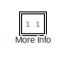
[diagram: root canvas - part 1/2, top right region]
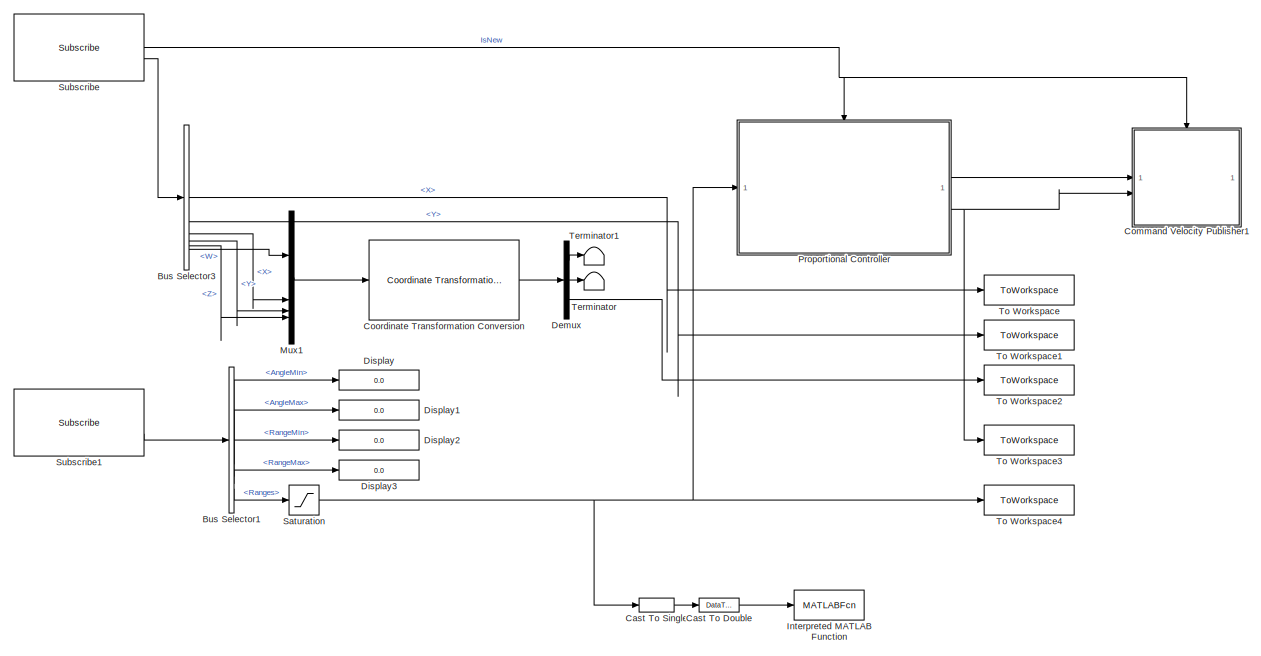
[diagram: root canvas - part 2/2, most of the canvas]
MODEL slx_bec682f37123
KIND model
CONFIG AbsTol = auto
CONFIG EnableMultiTasking = off
CONFIG FixedStep = 0.1
CONFIG MaxStep = auto
CONFIG MinStep = auto
CONFIG RelTol = 1e-3
CONFIG SampleTimeConstraint = Unconstrained
CONFIG SolverName = FixedStepAuto
CONFIG StartTime = 0.0
CONFIG StopTime = inf
WORKSPACE source: mxarray member
WORKSPACE SL_ROS_VariableLengthArrays_MaxSizes: object (value not decoded)
BLOCK [BusSelector] Bus Selector1
  OutputSignals = AngleMin,AngleMax,RangeMin,RangeMax,Ranges
BLOCK [BusSelector] Bus Selector3
  OutputSignals = Pose.Pose.Position.X,Pose.Pose.Position.Y,Pose.Pose.Orientation.X,Pose.Pose.Orientation.Y,Pose.Pose.Orientation.Z,Pose.Pose.Orientation.W
BLOCK [DataTypeConversion] Cast To Double
  Commented = on
  OutDataTypeStr = double
  RndMeth = Floor
  SaturateOnIntegerOverflow = off
BLOCK [DataTypeConversion] Cast To Single
  Commented = on
  OutDataTypeStr = single
  RndMeth = Floor
  SaturateOnIntegerOverflow = off
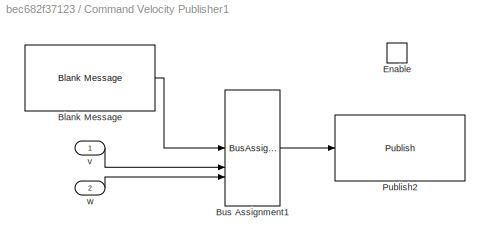
BLOCK [SubSystem] Command Velocity Publisher1
BLOCK [Reference] Command Velocity Publisher1/Blank Message  REF=robotlib/Blank Message
  SourceBlock = robotlib/Blank Message
  SourceType = ROS Blank Message
BLOCK [BusAssignment] Command Velocity Publisher1/Bus Assignment1
  AssignedSignals = Linear.X,Angular.Z
  DialogController = Simulink.DDGSource_BusAssignment
BLOCK [EnablePort] Command Velocity Publisher1/Enable
BLOCK [Reference] Command Velocity Publisher1/Publish2  REF=robotlib/Publish
  AttributesFormatString = %<messageType>
  SourceBlock = robotlib/Publish
  SourceType = ROS Publish
BLOCK [Inport] Command Velocity Publisher1/v
BLOCK [Inport] Command Velocity Publisher1/w
  Port = 2
BLOCK [Reference] Coordinate Transformation Conversion  REF=robotcorelib/Coordinate Transformation Conversion
  LibrarySourceBlock = roslib/Utilities/Coordinate Transformation Conversion
  SourceBlock = robotcorelib/Coordinate Transformation Conversion
  SourceType = robotics.slcore.internal.block.CoordinateTransformationConversion
BLOCK [Demux] Demux
  Outputs = 3
BLOCK [Display] Display
  Decimation = 1
BLOCK [Display] Display1
  Decimation = 1
BLOCK [Display] Display2
  Decimation = 1
BLOCK [Display] Display3
  Decimation = 1
BLOCK [MATLABFcn] Interpreted MATLAB Function
  Commented = on
  MATLABFcn = plot_lidar(u(1:end))
BLOCK [SubSystem] More Info
  OpenFcn = showdemo(bdroot(gcb))
BLOCK [Mux] Mux1
  DisplayOption = bar
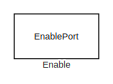
[diagram: Proportional Controller - part 1/2, top left region]
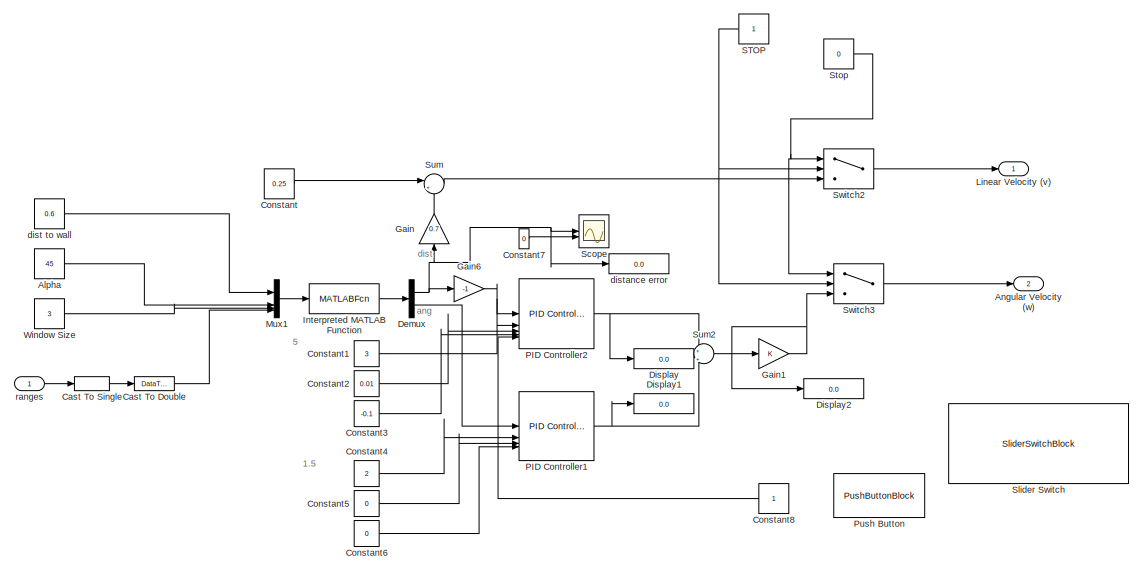
[diagram: Proportional Controller - part 2/2, middle right region]
BLOCK [SubSystem] Proportional Controller
BLOCK [Constant] Proportional Controller/Alpha
  Value = 45
BLOCK [Outport] Proportional Controller/Angular Velocity (w)
  Port = 2
  VectorParamsAs1DForOutWhenUnconnected = off
BLOCK [DataTypeConversion] Proportional Controller/Cast To Double
  OutDataTypeStr = double
  RndMeth = Floor
  SaturateOnIntegerOverflow = off
BLOCK [DataTypeConversion] Proportional Controller/Cast To Single
  OutDataTypeStr = single
  RndMeth = Floor
  SaturateOnIntegerOverflow = off
BLOCK [Constant] Proportional Controller/Constant
  Value = 0.25
BLOCK [Constant] Proportional Controller/Constant1
  Value = 3
BLOCK [Constant] Proportional Controller/Constant2
  Value = 0.01
BLOCK [Constant] Proportional Controller/Constant3
  Value = -0.1
BLOCK [Constant] Proportional Controller/Constant4
  Value = 2
BLOCK [Constant] Proportional Controller/Constant5
  Value = 0
BLOCK [Constant] Proportional Controller/Constant6
  Value = 0
BLOCK [Constant] Proportional Controller/Constant7
  Value = 0
BLOCK [Constant] Proportional Controller/Constant8
  NameLocation = top
BLOCK [Demux] Proportional Controller/Demux
  Outputs = 2
BLOCK [Display] Proportional Controller/Display
  Decimation = 1
BLOCK [Display] Proportional Controller/Display1
  Decimation = 1
BLOCK [Display] Proportional Controller/Display2
  Decimation = 1
BLOCK [EnablePort] Proportional Controller/Enable
BLOCK [Gain] Proportional Controller/Gain
  Gain = 0.7
  NameLocation = right
BLOCK [Gain] Proportional Controller/Gain1
BLOCK [Gain] Proportional Controller/Gain6
  Gain = -1
BLOCK [MATLABFcn] Proportional Controller/Interpreted MATLAB Function
  MATLABFcn = wall_controller_error(u(1), u(2), u(3), u(4:end))
  OutputDimensions = 2
BLOCK [Outport] Proportional Controller/Linear Velocity (v)
  VectorParamsAs1DForOutWhenUnconnected = off
BLOCK [Mux] Proportional Controller/Mux1
  DisplayOption = bar
BLOCK [Reference] Proportional Controller/PID Controller1  REF=slpidlib/PID Controller
  SourceBlock = slpidlib/PID Controller
  SourceType = PID 1dof
BLOCK [Reference] Proportional Controller/PID Controller2  REF=slpidlib/PID Controller
  SourceBlock = slpidlib/PID Controller
  SourceType = PID 1dof
BLOCK [PushButtonBlock] Proportional Controller/Push Button
  OffValue = 1.000000
BLOCK [Constant] Proportional Controller/STOP 
  NameLocation = top
BLOCK [Scope] Proportional Controller/Scope
  Floating = off
  NumInputPorts = 2
  ScopeSpecificationString = Simulink.scopes.TimeScopeBlockCfg('CurrentConfiguration', extmgr.ConfigurationSet(extmgr.Configuration('Core','General UI',true),extmgr.Configuration('Core','Source UI',true),extmgr.Configuration('Sources','WiredSimulink',true),extmgr.Configuration('Visuals','Time Domain',true,'SerializedDisplays',{struct('MinYLimReal','-0.28588','MaxYLimReal','0.05288','YLabelReal','','MinYLimMag','0.00000','MaxY...<+1803ch>
BLOCK [SliderSwitchBlock] Proportional Controller/Slider Switch
BLOCK [Constant] Proportional Controller/Stop
  Value = 0
BLOCK [Sum] Proportional Controller/Sum
  Inputs = |++
BLOCK [Sum] Proportional Controller/Sum2
  Inputs = +|+
BLOCK [Switch] Proportional Controller/Switch2
  Criteria = u2 ~= 0
  InputSameDT = off
  SaturateOnIntegerOverflow = off
BLOCK [Switch] Proportional Controller/Switch3
  Criteria = u2 ~= 0
  InputSameDT = off
  SaturateOnIntegerOverflow = off
BLOCK [Constant] Proportional Controller/Window Size
  Value = 3
BLOCK [Constant] Proportional Controller/dist to wall
  Value = 0.6
BLOCK [Display] Proportional Controller/distance error
  Decimation = 1
BLOCK [Inport] Proportional Controller/ranges
BLOCK [Saturate] Saturation
  LinearizeAsGain = off
  LowerLimit = 0.12
  UpperLimit = 3.5
BLOCK [Reference] Subscribe  REF=robotlib/Subscribe
  SourceBlock = robotlib/Subscribe
  SourceType = ROS Subscribe
BLOCK [Reference] Subscribe1  REF=robotlib/Subscribe
  SourceBlock = robotlib/Subscribe
  SourceType = ROS Subscribe
BLOCK [Terminator] Terminator
BLOCK [Terminator] Terminator1
BLOCK [ToWorkspace] To Workspace
  FixptAsFi = on
  MaxDataPoints = inf
  SampleTime = -1
  SaveFormat = Timeseries
  VariableName = x_exp
BLOCK [ToWorkspace] To Workspace1
  FixptAsFi = on
  MaxDataPoints = inf
  SampleTime = -1
  SaveFormat = Timeseries
  VariableName = y_exp
BLOCK [ToWorkspace] To Workspace2
  FixptAsFi = on
  MaxDataPoints = inf
  SampleTime = -1
  SaveFormat = Timeseries
  VariableName = theta_exp
BLOCK [ToWorkspace] To Workspace3
  FixptAsFi = on
  MaxDataPoints = inf
  SampleTime = -1
  SaveFormat = Timeseries
  VariableName = ang_vel_exp
BLOCK [ToWorkspace] To Workspace4
  FixptAsFi = on
  MaxDataPoints = inf
  SampleTime = -1
  SaveFormat = Timeseries
  VariableName = ranges_exp
ANNOTATION Proportional Controller: 1.5
ANNOTATION Proportional Controller: 5
ANNOTATION Proportional Controller: ang
ANNOTATION Proportional Controller: dist
LINE Bus Selector1:1 -> Display:1
LINE Bus Selector1:2 -> Display1:1
LINE Bus Selector1:3 -> Display2:1
LINE Bus Selector1:4 -> Display3:1
LINE Bus Selector1:5 -> Saturation:1
LINE Bus Selector3:1 -> To Workspace:1
LINE Bus Selector3:2 -> To Workspace1:1
LINE Bus Selector3:3 -> Mux1:2
LINE Bus Selector3:4 -> Mux1:3
LINE Bus Selector3:5 -> Mux1:4
LINE Bus Selector3:6 -> Mux1:1
LINE Cast To Double:1 -> Interpreted MATLAB Function:1
LINE Cast To Single:1 -> Cast To Double:1
LINE Command Velocity Publisher1/Blank Message:1 -> Command Velocity Publisher1/Bus Assignment1:1
LINE Command Velocity Publisher1/Bus Assignment1:1 -> Command Velocity Publisher1/Publish2:1
LINE Command Velocity Publisher1/v:1 -> Command Velocity Publisher1/Bus Assignment1:2
LINE Command Velocity Publisher1/w:1 -> Command Velocity Publisher1/Bus Assignment1:3
LINE Coordinate Transformation Conversion:1 -> Demux:1
LINE Demux:1 -> Terminator1:1
LINE Demux:2 -> Terminator:1
LINE Demux:3 -> To Workspace2:1
LINE Mux1:1 -> Coordinate Transformation Conversion:1
LINE Proportional Controller/Alpha:1 -> Proportional Controller/Mux1:2
LINE Proportional Controller/Cast To Double:1 -> Proportional Controller/Mux1:4
LINE Proportional Controller/Cast To Single:1 -> Proportional Controller/Cast To Double:1
LINE Proportional Controller/Constant1:1 -> Proportional Controller/PID Controller2:2
LINE Proportional Controller/Constant2:1 -> Proportional Controller/PID Controller2:3
LINE Proportional Controller/Constant3:1 -> Proportional Controller/PID Controller2:4
LINE Proportional Controller/Constant4:1 -> Proportional Controller/PID Controller1:2
LINE Proportional Controller/Constant5:1 -> Proportional Controller/PID Controller1:3
LINE Proportional Controller/Constant6:1 -> Proportional Controller/PID Controller1:4
LINE Proportional Controller/Constant7:1 -> Proportional Controller/Scope:2
LINE Proportional Controller/Constant8:1 -> Proportional Controller/PID Controller2:5
LINE Proportional Controller/Constant:1 -> Proportional Controller/Sum:1
NET Proportional Controller/Demux:1 -> Proportional Controller/Gain6:1, Proportional Controller/Gain:1, Proportional Controller/Scope:1, Proportional Controller/distance error:1
LINE Proportional Controller/Demux:2 -> Proportional Controller/PID Controller1:1
NET Proportional Controller/Gain1:1 -> Proportional Controller/Display2:1, Proportional Controller/Switch3:3
LINE Proportional Controller/Gain6:1 -> Proportional Controller/PID Controller2:1
LINE Proportional Controller/Gain:1 -> Proportional Controller/Sum:2
LINE Proportional Controller/Interpreted MATLAB Function:1 -> Proportional Controller/Demux:1
LINE Proportional Controller/Mux1:1 -> Proportional Controller/Interpreted MATLAB Function:1
NET Proportional Controller/PID Controller1:1 -> Proportional Controller/Display1:1, Proportional Controller/Sum2:2
NET Proportional Controller/PID Controller2:1 -> Proportional Controller/Display:1, Proportional Controller/Sum2:1
NET Proportional Controller/STOP :1 -> Proportional Controller/Switch2:2, Proportional Controller/Switch3:2
NET Proportional Controller/Stop:1 -> Proportional Controller/Switch2:1, Proportional Controller/Switch3:1
LINE Proportional Controller/Sum2:1 -> Proportional Controller/Gain1:1
LINE Proportional Controller/Sum:1 -> Proportional Controller/Switch2:3
LINE Proportional Controller/Switch2:1 -> Proportional Controller/Linear Velocity (v):1
LINE Proportional Controller/Switch3:1 -> Proportional Controller/Angular Velocity (w):1
LINE Proportional Controller/Window Size:1 -> Proportional Controller/Mux1:3
LINE Proportional Controller/dist to wall:1 -> Proportional Controller/Mux1:1
LINE Proportional Controller/ranges:1 -> Proportional Controller/Cast To Single:1
LINE Proportional Controller:1 -> Command Velocity Publisher1:1
NET Proportional Controller:2 -> Command Velocity Publisher1:2, To Workspace3:1
NET Saturation:1 -> Cast To Single:1, Proportional Controller:1, To Workspace4:1
LINE Subscribe1:2 -> Bus Selector1:1
NET Subscribe:1 -> Command Velocity Publisher1:enable, Proportional Controller:enable
LINE Subscribe:2 -> Bus Selector3:1
note: NET lines group one-source signal fan-out (src -> all destinations, sorted); 1:1 wires keep LINE
